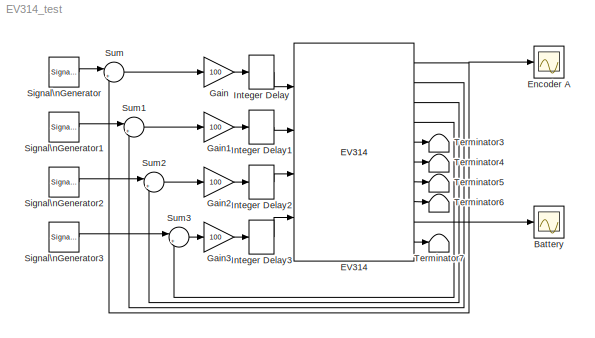
MODEL EV314_test
KIND model
BLOCK [Scope] Battery
  Floating = off
  NumInputPorts = 1
  Ports = [1]
  SID = 12
  ScopeSpecificationString = Simulink.scopes.TimeScopeBlockCfg('CurrentConfiguration', extmgr.ConfigurationSet(extmgr.Configuration('Core','General UI',true),extmgr.Configuration('Core','Source UI',true),extmgr.Configuration('Sources','WiredSimulink',true,'DataLoggingVariableName','ScopeData1','DataLoggingSaveFormat','StructureWithTime','DataLoggingLimitDataPoints',true,'DataLoggingDecimation','1','DataLoggingDecimateData',tr...<+1676ch>
BLOCK [Reference] EV314  REF=rpi_blkst/EV314  (lib defined in mdl_5f9edbe601a8, slx_830431f926a7)
  Ports = [4, 10]
  SID = 13
  SourceBlock = rpi_blkst/EV314
  SourceProductName = RPI Blockset
  SourceType = EV3.14 interface
  rpi_mask_ID = 0
  rpi_mask_Ts = 0.01
BLOCK [Scope] Encoder A
  Floating = off
  NumInputPorts = 1
  Ports = [1]
  SID = 11
  ScopeSpecificationString = Simulink.scopes.TimeScopeBlockCfg('CurrentConfiguration', extmgr.ConfigurationSet(extmgr.Configuration('Core','General UI',true),extmgr.Configuration('Core','Source UI',true),extmgr.Configuration('Sources','WiredSimulink',true,'DataLoggingSaveFormat','StructureWithTime','DataLoggingLimitDataPoints',true,'DataLoggingDecimation','1','DataLoggingDecimateData',true),extmgr.Configuration('Visuals','Tim...<+1637ch>
BLOCK [Gain] Gain
  Gain = 100
  OutDataTypeStr = Inherit: Inherit via internal rule
  ParamDataTypeStr = Inherit: Inherit via internal rule
  SID = 19
  SaturateOnIntegerOverflow = off
BLOCK [Gain] Gain1
  Gain = 100
  OutDataTypeStr = Inherit: Inherit via internal rule
  ParamDataTypeStr = Inherit: Inherit via internal rule
  SID = 24
  SaturateOnIntegerOverflow = off
BLOCK [Gain] Gain2
  Gain = 100
  OutDataTypeStr = Inherit: Inherit via internal rule
  ParamDataTypeStr = Inherit: Inherit via internal rule
  SID = 26
  SaturateOnIntegerOverflow = off
BLOCK [Gain] Gain3
  Gain = 100
  OutDataTypeStr = Inherit: Inherit via internal rule
  ParamDataTypeStr = Inherit: Inherit via internal rule
  SID = 28
  SaturateOnIntegerOverflow = off
BLOCK [Delay] Integer Delay
  DelayLength = 1
  InputPortMap = u0
  Ports = [1, 1]
  SID = 20
  UserData = DataTag0
  UserDataPersistent = on
BLOCK [Delay] Integer Delay1
  DelayLength = 1
  InputPortMap = u0
  Ports = [1, 1]
  SID = 25
  UserData = DataTag1
  UserDataPersistent = on
BLOCK [Delay] Integer Delay2
  DelayLength = 1
  InputPortMap = u0
  Ports = [1, 1]
  SID = 27
  UserData = DataTag2
  UserDataPersistent = on
BLOCK [Delay] Integer Delay3
  DelayLength = 1
  InputPortMap = u0
  Ports = [1, 1]
  SID = 29
  UserData = DataTag3
  UserDataPersistent = on
BLOCK [SignalGenerator] Signal\nGenerator
  Amplitude = 720
  Frequency = 0.25
  Ports = [0, 1]
  SID = 18
  WaveForm = square
BLOCK [SignalGenerator] Signal\nGenerator1
  Amplitude = 720
  Frequency = 0.25
  Ports = [0, 1]
  SID = 21
  WaveForm = square
BLOCK [SignalGenerator] Signal\nGenerator2
  Amplitude = 720
  Frequency = 0.25
  Ports = [0, 1]
  SID = 22
  WaveForm = square
BLOCK [SignalGenerator] Signal\nGenerator3
  Amplitude = 720
  Frequency = 0.25
  Ports = [0, 1]
  SID = 23
  WaveForm = square
BLOCK [Sum] Sum
  IconShape = round
  InputSameDT = off
  Inputs = |+-
  OutDataTypeStr = Inherit: Inherit via internal rule
  Ports = [2, 1]
  SID = 17
  SaturateOnIntegerOverflow = off
BLOCK [Sum] Sum1
  IconShape = round
  InputSameDT = off
  Inputs = |+-
  OutDataTypeStr = Inherit: Inherit via internal rule
  Ports = [2, 1]
  SID = 30
  SaturateOnIntegerOverflow = off
BLOCK [Sum] Sum2
  IconShape = round
  InputSameDT = off
  Inputs = |+-
  OutDataTypeStr = Inherit: Inherit via internal rule
  Ports = [2, 1]
  SID = 31
  SaturateOnIntegerOverflow = off
BLOCK [Sum] Sum3
  IconShape = round
  InputSameDT = off
  Inputs = |+-
  OutDataTypeStr = Inherit: Inherit via internal rule
  Ports = [2, 1]
  SID = 32
  SaturateOnIntegerOverflow = off
BLOCK [Terminator] Terminator3
  SID = 8
BLOCK [Terminator] Terminator4
  SID = 9
BLOCK [Terminator] Terminator5
  SID = 10
BLOCK [Terminator] Terminator6
  SID = 15
BLOCK [Terminator] Terminator7
  SID = 16
NET EV314:1 -> Encoder A:1, Sum:2
LINE EV314:10 -> Terminator7:1
LINE EV314:2 -> Sum1:2
LINE EV314:3 -> Sum2:2
LINE EV314:4 -> Sum3:2
LINE EV314:5 -> Terminator3:1
LINE EV314:6 -> Terminator4:1
LINE EV314:7 -> Terminator5:1
LINE EV314:8 -> Terminator6:1
LINE EV314:9 -> Battery:1
LINE Gain1:1 -> Integer Delay1:1
LINE Gain2:1 -> Integer Delay2:1
LINE Gain3:1 -> Integer Delay3:1
LINE Gain:1 -> Integer Delay:1
LINE Integer Delay1:1 -> EV314:2
LINE Integer Delay2:1 -> EV314:3
LINE Integer Delay3:1 -> EV314:4
LINE Integer Delay:1 -> EV314:1
LINE Signal\nGenerator1:1 -> Sum1:1
LINE Signal\nGenerator2:1 -> Sum2:1
LINE Signal\nGenerator3:1 -> Sum3:1
LINE Signal\nGenerator:1 -> Sum:1
LINE Sum1:1 -> Gain1:1
LINE Sum2:1 -> Gain2:1
LINE Sum3:1 -> Gain3:1
LINE Sum:1 -> Gain:1
note: NET lines group one-source signal fan-out (src -> all destinations, sorted); 1:1 wires keep LINE
